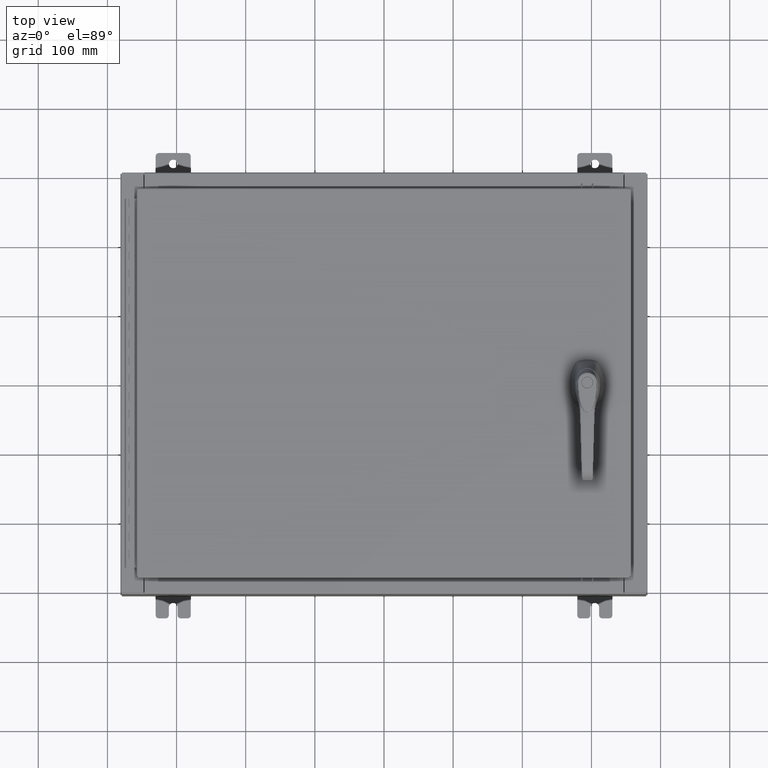
[diagram: clean part render]
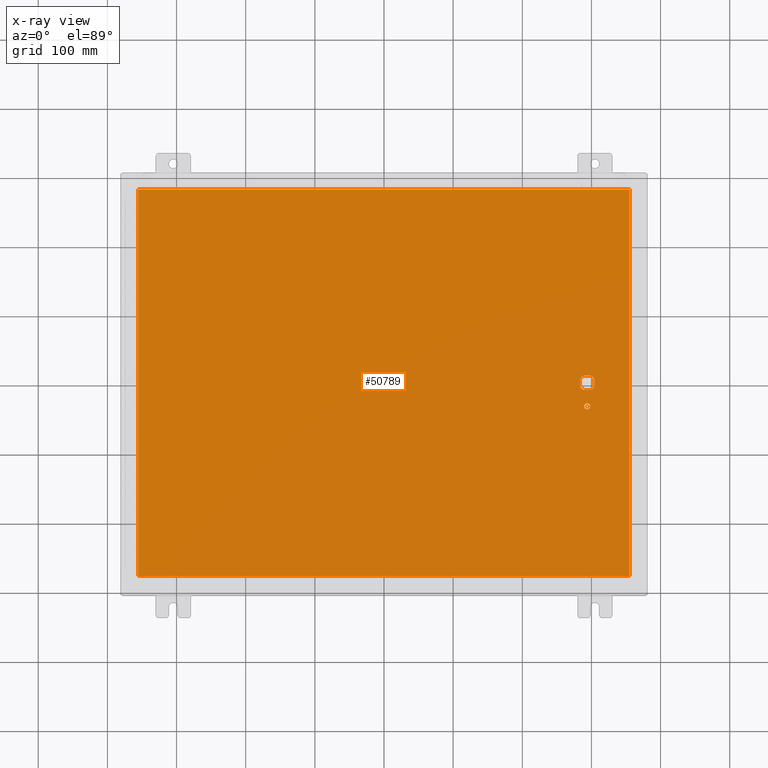
[diagram: x-ray — body ghosted, one internal face saturated and labeled with its STEP entity id]
A machine part, top view, then the same camera in x-ray: the body is ghosted and one INTERNAL B-rep face — a face not visible from any outside direction — is saturated and labeled: STEP entity #50789.
In plain terms, the highlighted planar face has unit normal (0, 0, -1).
Its self-contained STEP definition (entity closure, byte-faithful):
#668 = CARTESIAN_POINT ( 'NONE',  ( 11.74950000000000300, -1.338000000000000100, -0.07470000000000003000 ) ) ;
#958 = VERTEX_POINT ( 'NONE', #103923 ) ;
#1384 = FACE_BOUND ( 'NONE', #112044, .T. ) ;
#1433 = DIRECTION ( 'NONE',  ( -1.000000000000000000, -5.329070518200740300E-015, 0.0000000000000000000 ) ) ;
#2760 = VECTOR ( 'NONE', #11545, 39.37007874015748100 ) ;
#3551 = EDGE_CURVE ( 'NONE', #16864, #72295, #53458, .T. ) ;
#6178 = VERTEX_POINT ( 'NONE', #48046 ) ;
#6511 = CIRCLE ( 'NONE', #100599, 0.4499999999999168000 ) ;
#8076 = CARTESIAN_POINT ( 'NONE',  ( 11.98099999999992900, 0.2002273707563075900, -0.07470000000000003000 ) ) ;
#9447 = PLANE ( 'NONE',  #56934 ) ;
#9676 = CARTESIAN_POINT ( 'NONE',  ( 11.57800000000000100, 0.0000000000000000000, -0.07470000000000003000 ) ) ;
#9802 = VECTOR ( 'NONE', #51284, 39.37007874015748100 ) ;
#11417 = VERTEX_POINT ( 'NONE', #112292 ) ;
#11545 = DIRECTION ( 'NONE',  ( 0.0000000000000000000, 1.000000000000000000, 0.0000000000000000000 ) ) ;
#12441 = VECTOR ( 'NONE', #113439, 39.37007874015748100 ) ;
#12576 = LINE ( 'NONE', #74152, #82453 ) ;
#12892 = DIRECTION ( 'NONE',  ( 1.000000000000000000, 0.0000000000000000000, 0.0000000000000000000 ) ) ;
#14138 = CARTESIAN_POINT ( 'NONE',  ( 11.37777262924369200, 0.4029999999999252000, -0.07470000000000003000 ) ) ;
#14859 = AXIS2_PLACEMENT_3D ( 'NONE', #74221, #21730, #83034 ) ;
#15938 = DIRECTION ( 'NONE',  ( 5.457491617345625000E-015, -1.000000000000000000, 0.0000000000000000000 ) ) ;
#16864 = VERTEX_POINT ( 'NONE', #48898 ) ;
#18370 = DIRECTION ( 'NONE',  ( -1.000000000000000000, -1.776356839400246700E-015, 0.0000000000000000000 ) ) ;
#19868 = DIRECTION ( 'NONE',  ( -1.000000000000000000, -0.0000000000000000000, -0.0000000000000000000 ) ) ;
#21084 = DIRECTION ( 'NONE',  ( -0.0000000000000000000, -0.0000000000000000000, 1.000000000000000000 ) ) ;
#21620 = ORIENTED_EDGE ( 'NONE', *, *, #98321, .T. ) ;
#21730 = DIRECTION ( 'NONE',  ( -0.0000000000000000000, -0.0000000000000000000, 1.000000000000000000 ) ) ;
#22949 = ORIENTED_EDGE ( 'NONE', *, *, #110622, .T. ) ;
#23039 = EDGE_LOOP ( 'NONE', ( #105803, #83441, #69629, #97162, #21620, #73326, #69965, #93519 ) ) ;
#23622 = EDGE_CURVE ( 'NONE', #110588, #67366, #12576, .T. ) ;
#24519 = CARTESIAN_POINT ( 'NONE',  ( 0.0000000000000000000, 0.4029999999999252000, -0.07470000000000003000 ) ) ;
#25139 = VECTOR ( 'NONE', #43770, 39.37007874015748100 ) ;
#27903 = LINE ( 'NONE', #37338, #25139 ) ;
#28038 = ORIENTED_EDGE ( 'NONE', *, *, #31951, .F. ) ;
#28367 = ORIENTED_EDGE ( 'NONE', *, *, #31503, .F. ) ;
#31503 = EDGE_CURVE ( 'NONE', #6178, #62517, #92449, .T. ) ;
#31951 = EDGE_CURVE ( 'NONE', #62517, #16864, #109613, .T. ) ;
#35419 = DIRECTION ( 'NONE',  ( 0.0000000000000000000, 0.0000000000000000000, -1.000000000000000000 ) ) ;
#36922 = ORIENTED_EDGE ( 'NONE', *, *, #65680, .F. ) ;
#37338 = CARTESIAN_POINT ( 'NONE',  ( 11.17500000000007500, 0.0000000000000000000, -0.07470000000000003000 ) ) ;
#39810 = LINE ( 'NONE', #77251, #68601 ) ;
#40469 = CARTESIAN_POINT ( 'NONE',  ( 11.57800000000000100, -1.338000000000000100, -0.07470000000000003000 ) ) ;
#40780 = CARTESIAN_POINT ( 'NONE',  ( -13.99029999999999800, -11.00630000000000100, -0.07470000000000000300 ) ) ;
#42082 = DIRECTION ( 'NONE',  ( -0.0000000000000000000, -0.0000000000000000000, 1.000000000000000000 ) ) ;
#42429 = FACE_OUTER_BOUND ( 'NONE', #99731, .T. ) ;
#42632 = VECTOR ( 'NONE', #72050, 39.37007874015748100 ) ;
#43770 = DIRECTION ( 'NONE',  ( 0.0000000000000000000, -1.000000000000000000, 0.0000000000000000000 ) ) ;
#45606 = CARTESIAN_POINT ( 'NONE',  ( -13.99029999999999200, -11.00630000000000100, -0.07470000000000132100 ) ) ;
#47923 = VERTEX_POINT ( 'NONE', #14138 ) ;
#48046 = CARTESIAN_POINT ( 'NONE',  ( 13.99030000000000100, -11.00630000000000000, -0.07470000000000000300 ) ) ;
#48450 = ORIENTED_EDGE ( 'NONE', *, *, #3551, .F. ) ;
#48898 = CARTESIAN_POINT ( 'NONE',  ( -13.99029999999999800, 11.00630000000000000, -0.07470000000000000300 ) ) ;
#49299 = DIRECTION ( 'NONE',  ( -1.000000000000000000, 0.0000000000000000000, 0.0000000000000000000 ) ) ;
#49869 = CARTESIAN_POINT ( 'NONE',  ( 13.99030000000000100, 11.00630000000000000, -0.07470000000000000300 ) ) ;
#50789 = ADVANCED_FACE ( 'NONE', ( #1384, #42429, #65766 ), #9447, .T. ) ;
#51284 = DIRECTION ( 'NONE',  ( -1.000000000000000000, 0.0000000000000000000, 0.0000000000000000000 ) ) ;
#53001 = CARTESIAN_POINT ( 'NONE',  ( 0.0000000000000000000, 0.0000000000000000000, -0.07470000000000000300 ) ) ;
#53070 = EDGE_CURVE ( 'NONE', #11417, #110588, #102525, .T. ) ;
#53458 = LINE ( 'NONE', #88076, #12441 ) ;
#53864 = DIRECTION ( 'NONE',  ( -0.0000000000000000000, -0.0000000000000000000, 1.000000000000000000 ) ) ;
#56349 = LINE ( 'NONE', #24519, #9802 ) ;
#56934 = AXIS2_PLACEMENT_3D ( 'NONE', #53001, #35419, #70626 ) ;
#58431 = CIRCLE ( 'NONE', #87143, 0.1715000000000011500 ) ;
#58615 = ORIENTED_EDGE ( 'NONE', *, *, #97261, .T. ) ;
#62517 = VERTEX_POINT ( 'NONE', #49869 ) ;
#64708 = CARTESIAN_POINT ( 'NONE',  ( 11.77822737075631200, 0.4029999999999250300, -0.07470000000000003000 ) ) ;
#65680 = EDGE_CURVE ( 'NONE', #72295, #6178, #65974, .T. ) ;
#65766 = FACE_BOUND ( 'NONE', #23039, .T. ) ;
#65974 = LINE ( 'NONE', #45606, #42632 ) ;
#67366 = VERTEX_POINT ( 'NONE', #71706 ) ;
#68601 = VECTOR ( 'NONE', #15938, 39.37007874015748100 ) ;
#69629 = ORIENTED_EDGE ( 'NONE', *, *, #85116, .T. ) ;
#69698 = AXIS2_PLACEMENT_3D ( 'NONE', #94633, #42082, #103453 ) ;
#69965 = ORIENTED_EDGE ( 'NONE', *, *, #53070, .T. ) ;
#70626 = DIRECTION ( 'NONE',  ( -1.000000000000000000, 0.0000000000000000000, -0.0000000000000000000 ) ) ;
#70849 = DIRECTION ( 'NONE',  ( -0.0000000000000000000, -0.0000000000000000000, 1.000000000000000000 ) ) ;
#71706 = CARTESIAN_POINT ( 'NONE',  ( 11.77822737075631200, -0.4029999999999252000, -0.07470000000000003000 ) ) ;
#72050 = DIRECTION ( 'NONE',  ( 1.000000000000000000, -0.0000000000000000000, -0.0000000000000000000 ) ) ;
#72295 = VERTEX_POINT ( 'NONE', #40780 ) ;
#73326 = ORIENTED_EDGE ( 'NONE', *, *, #113151, .T. ) ;
#73568 = CARTESIAN_POINT ( 'NONE',  ( 11.57800000000000100, -1.338000000000000100, -0.07470000000000003000 ) ) ;
#74027 = VERTEX_POINT ( 'NONE', #95470 ) ;
#74152 = CARTESIAN_POINT ( 'NONE',  ( 0.0000000000000000000, -0.4029999999999252000, -0.07470000000000003000 ) ) ;
#74221 = CARTESIAN_POINT ( 'NONE',  ( 11.57800000000000100, 0.0000000000000000000, -0.07470000000000003000 ) ) ;
#74966 = CARTESIAN_POINT ( 'NONE',  ( 11.37777262924369200, -0.4029999999999250300, -0.07470000000000003000 ) ) ;
#77251 = CARTESIAN_POINT ( 'NONE',  ( 11.98099999999992900, 6.538620706741755000E-014, -0.07470000000000003000 ) ) ;
#78271 = CARTESIAN_POINT ( 'NONE',  ( 11.40650000000000100, -1.338000000000000100, -0.07470000000000003000 ) ) ;
#78743 = CARTESIAN_POINT ( 'NONE',  ( 13.99030000000000100, -11.00630000000000000, -0.07470000000000019700 ) ) ;
#78878 = CIRCLE ( 'NONE', #82179, 0.1715000000000011500 ) ;
#82179 = AXIS2_PLACEMENT_3D ( 'NONE', #73568, #21084, #82405 ) ;
#82405 = DIRECTION ( 'NONE',  ( -1.000000000000000000, 0.0000000000000000000, 0.0000000000000000000 ) ) ;
#82453 = VECTOR ( 'NONE', #12892, 39.37007874015748100 ) ;
#83034 = DIRECTION ( 'NONE',  ( -1.000000000000000000, -1.776356839400246700E-015, 0.0000000000000000000 ) ) ;
#83441 = ORIENTED_EDGE ( 'NONE', *, *, #104044, .F. ) ;
#83504 = VECTOR ( 'NONE', #19868, 39.37007874015748100 ) ;
#85116 = EDGE_CURVE ( 'NONE', #90963, #94171, #6511, .T. ) ;
#87143 = AXIS2_PLACEMENT_3D ( 'NONE', #40469, #101816, #49299 ) ;
#88076 = CARTESIAN_POINT ( 'NONE',  ( -13.99029999999999800, 11.00630000000000100, -0.07470000000000019700 ) ) ;
#90963 = VERTEX_POINT ( 'NONE', #8076 ) ;
#92449 = LINE ( 'NONE', #78743, #2760 ) ;
#92904 = VERTEX_POINT ( 'NONE', #668 ) ;
#93038 = AXIS2_PLACEMENT_3D ( 'NONE', #9676, #70849, #18370 ) ;
#93519 = ORIENTED_EDGE ( 'NONE', *, *, #23622, .T. ) ;
#94171 = VERTEX_POINT ( 'NONE', #64708 ) ;
#94633 = CARTESIAN_POINT ( 'NONE',  ( 11.57800000000000100, 0.0000000000000000000, -0.07470000000000003000 ) ) ;
#95470 = CARTESIAN_POINT ( 'NONE',  ( 11.17500000000007500, 0.2002273707563075900, -0.07470000000000003000 ) ) ;
#97162 = ORIENTED_EDGE ( 'NONE', *, *, #103702, .T. ) ;
#97261 = EDGE_CURVE ( 'NONE', #97941, #92904, #78878, .T. ) ;
#97941 = VERTEX_POINT ( 'NONE', #78271 ) ;
#98321 = EDGE_CURVE ( 'NONE', #47923, #74027, #111682, .T. ) ;
#99731 = EDGE_LOOP ( 'NONE', ( #28367, #36922, #48450, #28038 ) ) ;
#100599 = AXIS2_PLACEMENT_3D ( 'NONE', #106373, #53864, #1433 ) ;
#101816 = DIRECTION ( 'NONE',  ( -0.0000000000000000000, -0.0000000000000000000, 1.000000000000000000 ) ) ;
#102248 = EDGE_CURVE ( 'NONE', #67366, #958, #110021, .T. ) ;
#102525 = CIRCLE ( 'NONE', #93038, 0.4499999999999168000 ) ;
#103453 = DIRECTION ( 'NONE',  ( -1.000000000000000000, -5.329070518200740300E-015, 0.0000000000000000000 ) ) ;
#103702 = EDGE_CURVE ( 'NONE', #94171, #47923, #56349, .T. ) ;
#103923 = CARTESIAN_POINT ( 'NONE',  ( 11.98099999999992900, -0.2002273707563067300, -0.07470000000000003000 ) ) ;
#104044 = EDGE_CURVE ( 'NONE', #90963, #958, #39810, .T. ) ;
#105803 = ORIENTED_EDGE ( 'NONE', *, *, #102248, .T. ) ;
#106373 = CARTESIAN_POINT ( 'NONE',  ( 11.57800000000000100, 0.0000000000000000000, -0.07470000000000003000 ) ) ;
#107265 = CARTESIAN_POINT ( 'NONE',  ( 13.99030000000000100, 11.00630000000000000, -0.07470000000000129300 ) ) ;
#109613 = LINE ( 'NONE', #107265, #83504 ) ;
#110021 = CIRCLE ( 'NONE', #14859, 0.4499999999999168000 ) ;
#110588 = VERTEX_POINT ( 'NONE', #74966 ) ;
#110622 = EDGE_CURVE ( 'NONE', #92904, #97941, #58431, .T. ) ;
#111682 = CIRCLE ( 'NONE', #69698, 0.4499999999999168000 ) ;
#112044 = EDGE_LOOP ( 'NONE', ( #22949, #58615 ) ) ;
#112292 = CARTESIAN_POINT ( 'NONE',  ( 11.17500000000007500, -0.2002273707563079800, -0.07470000000000003000 ) ) ;
#113151 = EDGE_CURVE ( 'NONE', #74027, #11417, #27903, .T. ) ;
#113439 = DIRECTION ( 'NONE',  ( 0.0000000000000000000, -1.000000000000000000, 0.0000000000000000000 ) ) ;